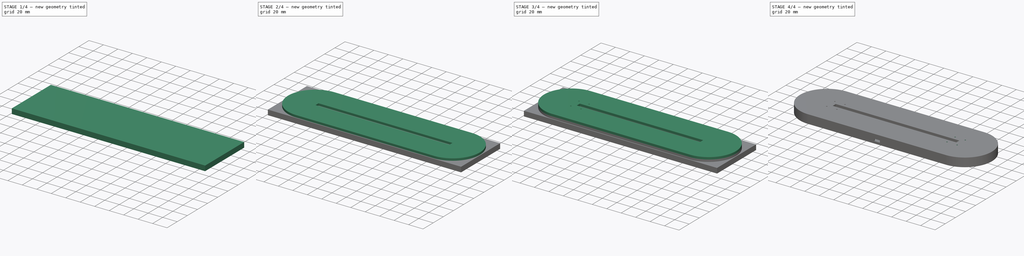
[diagram: build sequence overview — one tinted view per stage of 4, left to right]
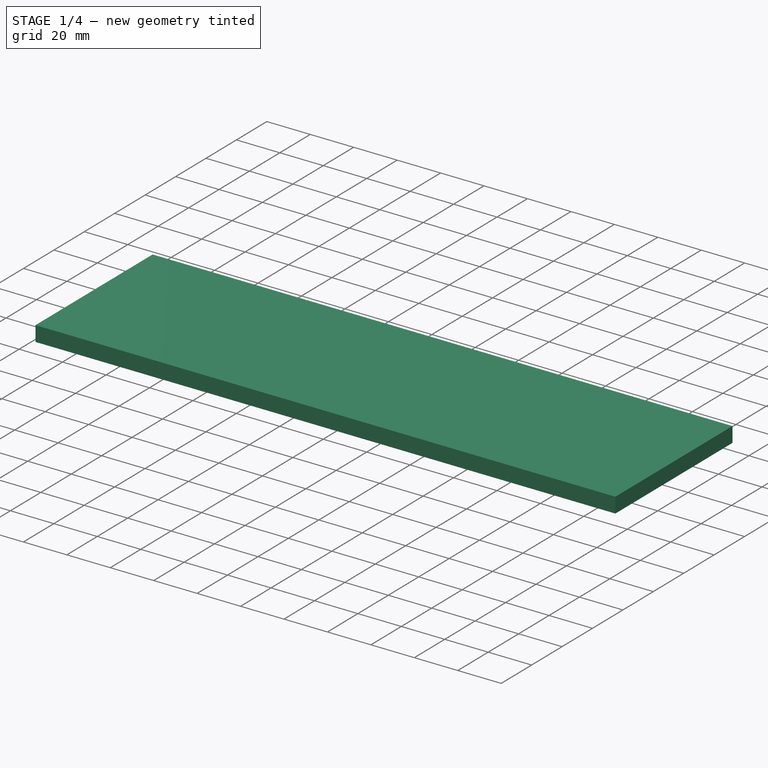
[diagram: stage 1 of 4 — iso view after this stage's code; geometry added in this stage tinted green]
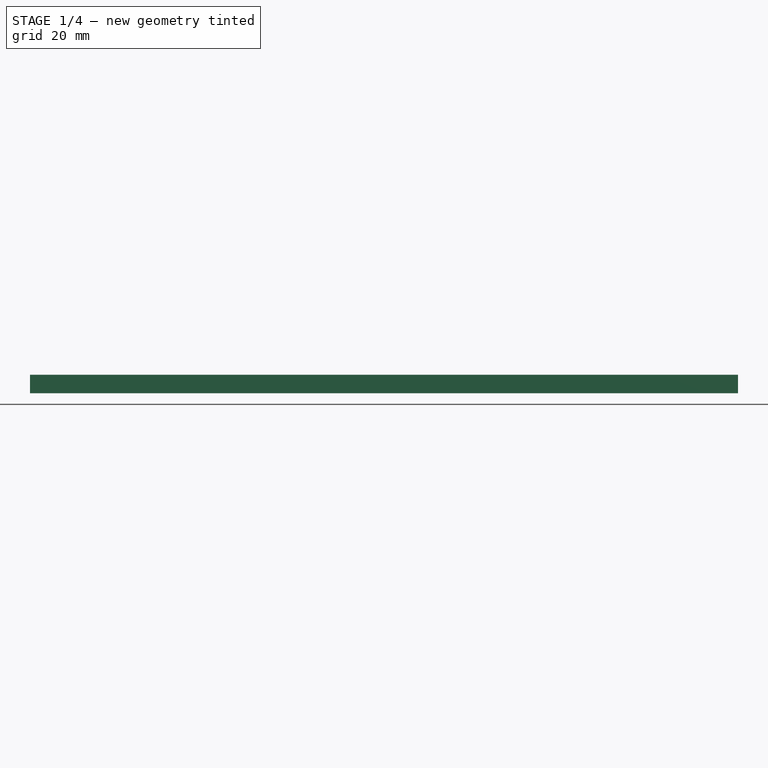
[diagram: stage 1 of 4 — front view after this stage's code; geometry added in this stage tinted green]
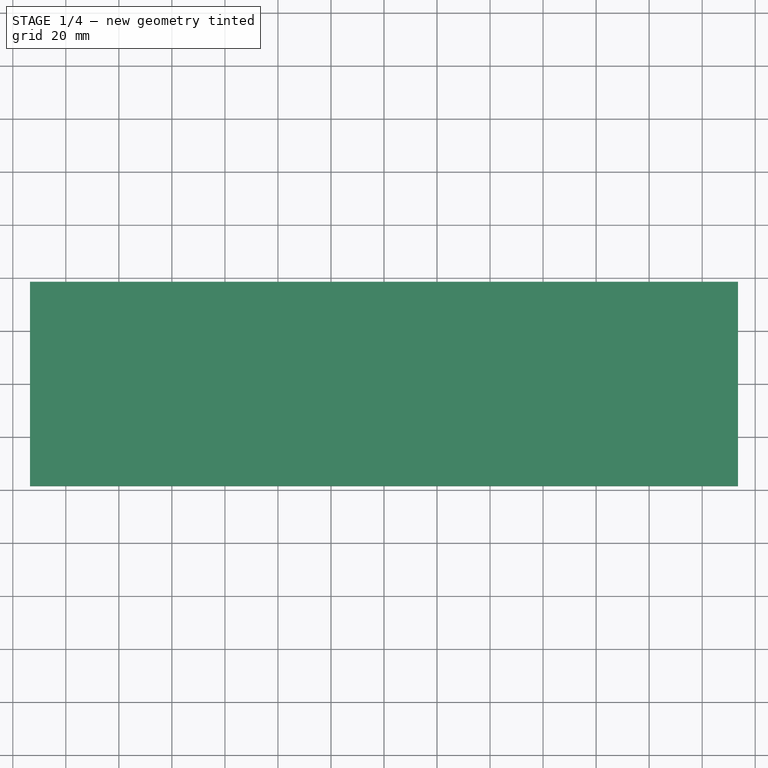
[diagram: stage 1 of 4 — top view after this stage's code; geometry added in this stage tinted green]
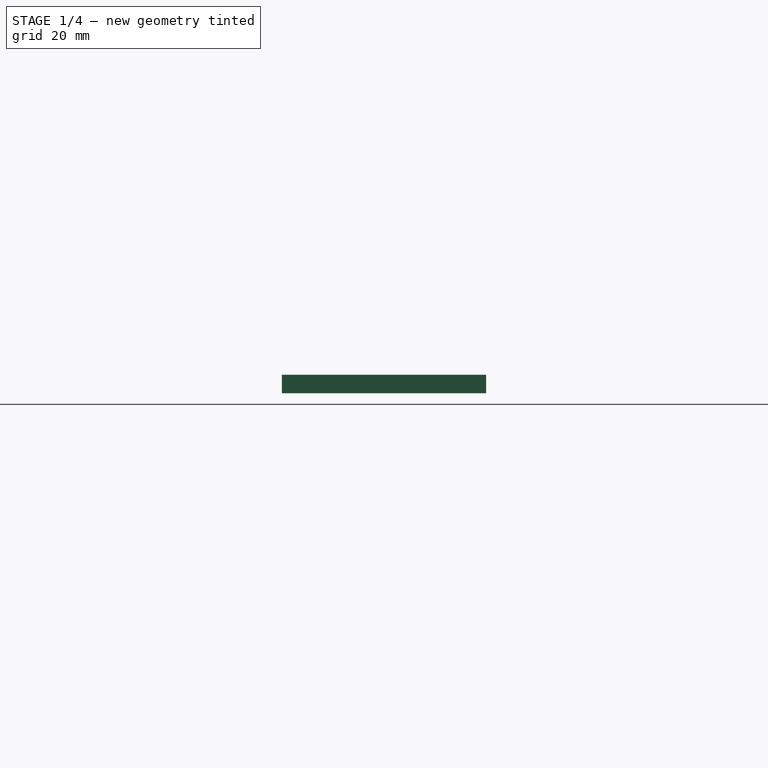
[diagram: stage 1 of 4 — right view after this stage's code; geometry added in this stage tinted green]
FCSTD DOCUMENT  (FreeCAD 0.17R13541 (Git))
Label: Acry-Base-Tiny-25-Right-Angle-notch-Slot-upper-Notch-Laser-Sect
License: All rights reserved
LicenseURL: http://en.wikipedia.org/wiki/All_rights_reserved
objects: Sketcher::SketchObject×7, App::MeasureDistance×5, PartDesign::Pocket×4, Part::Feature×4, PartDesign::Pad×3, PartDesign::Mirrored×1, PartDesign::Body×1, App::Part×1, Part::Box×1, Part::MultiCommon×1, Part::Cut×1, App::DocumentObjectGroup×1
note: 30 computed .brp shape members not serialized (recipe doc carries the construction recipe); baked Part::Feature solids carry a one-line shape summary decoded from their .brp

FEATURE [Sketcher::SketchObject] Sketch
  MapMode = 5
  Support = -> [XY_Plane001]
  sketch-geometry (5):
    g0: ArcOfCircle CenterX=-95 CenterY=0 CenterZ=0 NormalX=0 NormalY=0 NormalZ=1 AngleXU=0 Radius=37.5 StartAngle=1.5708 EndAngle=4.71239
    g1: ArcOfCircle CenterX=95 CenterY=0 CenterZ=0 NormalX=0 NormalY=0 NormalZ=1 AngleXU=0 Radius=37.5 StartAngle=4.71239 EndAngle=7.85398
    g2: LineSegment StartX=-95 StartY=-37.5 StartZ=0 EndX=95 EndY=-37.5 EndZ=0
    g3: LineSegment StartX=-95 StartY=37.5 StartZ=0 EndX=95 EndY=37.5 EndZ=0
    g4: GeomPoint X=0 Y=37.5 Z=0
  constraints (12):
    c: Tangent(g0,g3) = 1.5708
    c: Tangent(g0,g2) = -1.5708
    c: Tangent(g2,g1) = -1.5708
    c: Tangent(g3,g1) = 1.5708
    c: Horizontal(g2)
    c: Equal(g0,g1)
    c: Distance(g1,g1) = 75
    c: Distance(g0,g1) = 190
    c: PointOnObject(g4,g3)
    c: Symmetric(g1,g0,g4)
    c: PointOnObject(g4,g-2)
    c: PointOnObject(g0,g-1)
FEATURE [PartDesign::Pad] Pad
  Length = 6
  Length2 = 100
  Profile = -> Sketch
  Type = 0
FEATURE [Sketcher::SketchObject] Sketch001
  MapMode = 5
  Placement = pos=(0,0,6) rot=(0,0,1;0rad)
  Support = -> [Pad]
  sketch-geometry (5):
    g0: ArcOfCircle CenterX=-87.3 CenterY=0 CenterZ=0 NormalX=0 NormalY=0 NormalZ=1 AngleXU=0 Radius=6 StartAngle=1.5708 EndAngle=4.71239
    g1: ArcOfCircle CenterX=87.3 CenterY=0 CenterZ=0 NormalX=0 NormalY=0 NormalZ=1 AngleXU=0 Radius=6 StartAngle=4.71239 EndAngle=7.85398
    g2: LineSegment StartX=-87.3 StartY=-6 StartZ=0 EndX=87.3 EndY=-6 EndZ=0
    g3: LineSegment StartX=-87.3 StartY=6 StartZ=0 EndX=87.3 EndY=6 EndZ=0
    g4: GeomPoint X=0 Y=6 Z=0
  constraints (12):
    c: Tangent(g0,g3) = 1.5708
    c: Tangent(g0,g2) = -1.5708
    c: Tangent(g2,g1) = -1.5708
    c: Tangent(g3,g1) = 1.5708
    c: Horizontal(g2)
    c: Equal(g0,g1)
    c: Distance(g3) = 174.6
    c: Distance(g1,g1) = 12
    c: PointOnObject(g4,g3)
    c: Symmetric(g1,g0,g4)
    c: PointOnObject(g4,g-2)
    c: PointOnObject(g0,g-1)
FEATURE [PartDesign::Pocket] Pocket
  BaseFeature = -> Pad
  Length = 3
  Length2 = 100
  Profile = -> Sketch001
  Type = 0
FEATURE [PartDesign::Body] Body
  Group = -> [Sketch,Pad,Sketch001,Pocket,Sketch002,Pocket001,Sketch003,Pocket002,Sketch004,Pad001,Sketch005,Pad002,Sketch007,Pocket003,Mirrored]
  Origin = -> Origin001
  Tip = -> Mirrored
FEATURE [App::Part] Part
  Group = -> [Body]
  License = CC BY 3.0
  LicenseURL = http://creativecommons.org/licenses/by/3.0/
  Origin = -> Origin
FEATURE [App::MeasureDistance] Distance  label="Distance: 47.22 mm"
  Distance = 47.224
  P1 = (85.25,0.401779,12)
  P2 = (132.447,1.98463,12)
FEATURE [Part::Box] box_bottom_half_0
  AttacherType = Attacher::AttachEngine3D
  Height = 7
  Length = 266.988
  Placement = pos=(-133.494,-38.5,-1) rot=(0,0,1;0rad)
  Width = 77
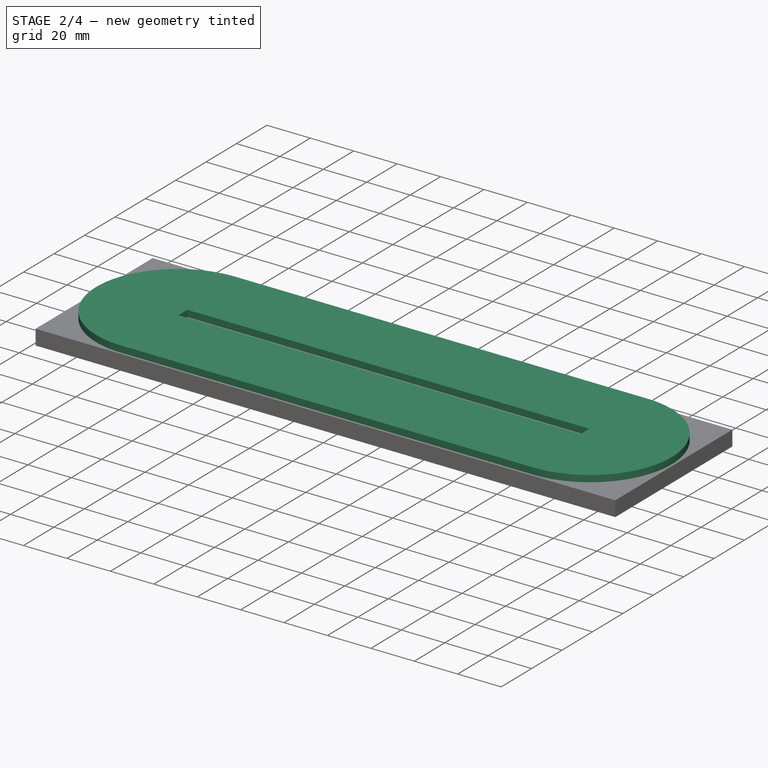
[diagram: stage 2 of 4 — iso view after this stage's code; geometry added in this stage tinted green]
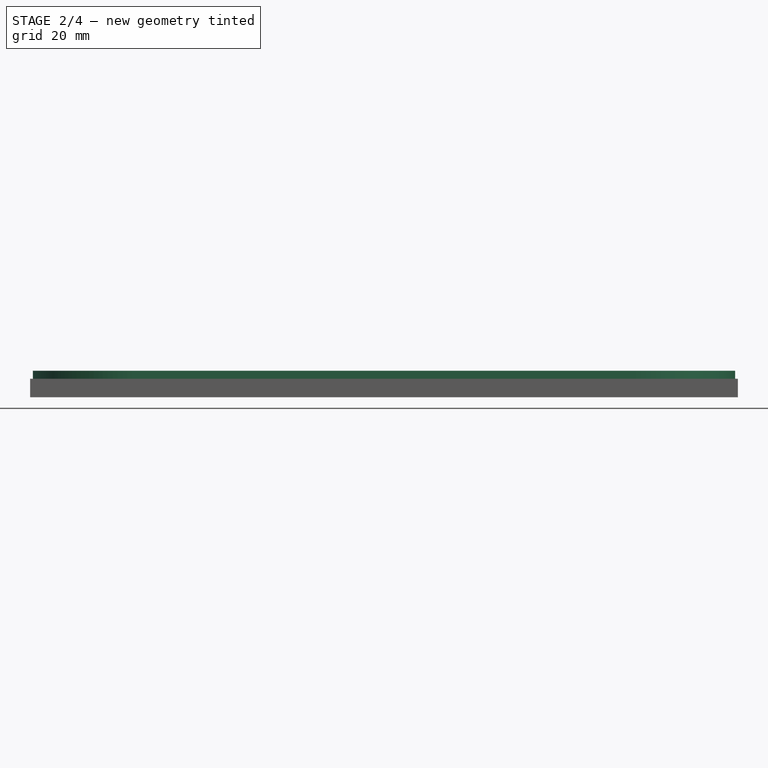
[diagram: stage 2 of 4 — front view after this stage's code; geometry added in this stage tinted green]
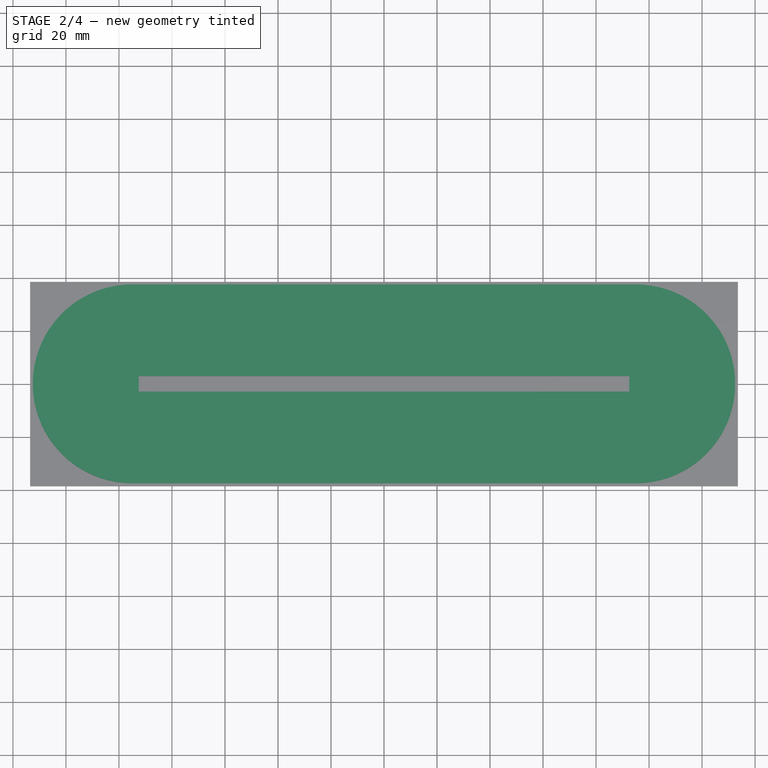
[diagram: stage 2 of 4 — top view after this stage's code; geometry added in this stage tinted green]
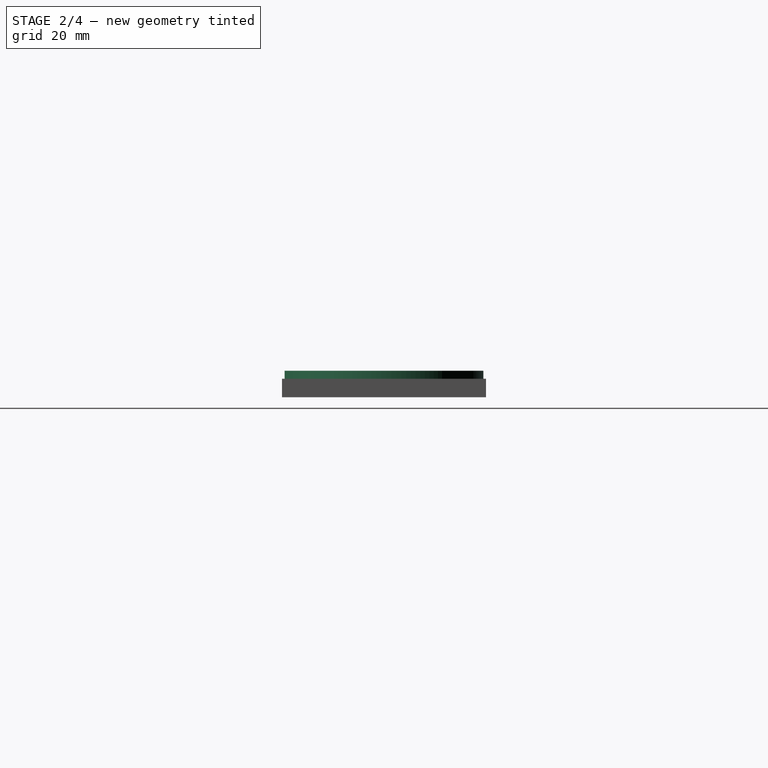
[diagram: stage 2 of 4 — right view after this stage's code; geometry added in this stage tinted green]
FEATURE [Sketcher::SketchObject] Sketch002
  ExternalGeometry = -> [Pocket]
  MapMode = 5
  Placement = pos=(0,0,6) rot=(0,0,1;0rad)
  Support = -> [Pocket]
  sketch-geometry (5):
    g0: LineSegment StartX=-9.2 StartY=-15 StartZ=0 EndX=9.2 EndY=-15 EndZ=0
    g1: LineSegment StartX=9.2 StartY=-15 StartZ=0 EndX=9.2 EndY=-35.85 EndZ=0
    g2: LineSegment StartX=9.2 StartY=-35.85 StartZ=0 EndX=-9.2 EndY=-35.85 EndZ=0
    g3: LineSegment StartX=-9.2 StartY=-35.85 StartZ=0 EndX=-9.2 EndY=-15 EndZ=0
    g4: GeomPoint X=0 Y=-15 Z=0
  constraints (14):
    c: Coincident(g0,g1)
    c: Coincident(g1,g2)
    c: Coincident(g2,g3)
    c: Coincident(g3,g0)
    c: Horizontal(g0)
    c: Horizontal(g2)
    c: Vertical(g1)
    c: Vertical(g3)
    c: Distance(g0) = 18.4
    c: Distance(g1) = 20.85
    c: PointOnObject(g4,g0)
    c: Symmetric(g0,g0,g4)
    c: PointOnObject(g4,g-2)
    c: Distance(g2,g-3) = 1.65
FEATURE [PartDesign::Pocket] Pocket001
  BaseFeature = -> Pocket
  Length = 3
  Length2 = 100
  Profile = -> Sketch002
  Type = 0
FEATURE [Sketcher::SketchObject] Sketch003
  ExternalGeometry = -> [Pocket001]
  MapMode = 5
  Placement = pos=(0,0,6) rot=(0,0,1;0rad)
  Support = -> [Pocket001]
  sketch-geometry (5):
    g0: LineSegment StartX=-4 StartY=-35.85 StartZ=0 EndX=4 EndY=-35.85 EndZ=0
    g1: LineSegment StartX=4 StartY=-35.85 StartZ=0 EndX=4 EndY=-37.5 EndZ=0
    g2: LineSegment StartX=4 StartY=-37.5 StartZ=0 EndX=-4 EndY=-37.5 EndZ=0
    g3: LineSegment StartX=-4 StartY=-37.5 StartZ=0 EndX=-4 EndY=-35.85 EndZ=0
    g4: GeomPoint X=0 Y=-35.85 Z=0
  constraints (13):
    c: Coincident(g2,g3)
    c: Coincident(g0,g3)
    c: Coincident(g1,g2)
    c: Coincident(g0,g1)
    c: Vertical(g1)
    c: Vertical(g3)
    c: Symmetric(g0,g0,g4)
    c: PointOnObject(g4,g-2)
    c: Horizontal(g0)
    c: Horizontal(g2)
    c: PointOnObject(g1,g-4)
    c: PointOnObject(g0,g-5)
    c: Distance(g2) = 8
FEATURE [PartDesign::Pocket] Pocket002
  BaseFeature = -> Pocket001
  Length = 3
  Length2 = 100
  Profile = -> Sketch003
  Type = 0
FEATURE [Sketcher::SketchObject] Sketch004
  ExternalGeometry = -> [Pocket002]
  MapMode = 5
  Placement = pos=(0,0,6) rot=(0,0,1;0rad)
  Support = -> [Pocket002]
  sketch-geometry (10):
    g0: ArcOfCircle CenterX=-95 CenterY=0 CenterZ=0 NormalX=0 NormalY=0 NormalZ=1 AngleXU=0 Radius=37.5 StartAngle=1.5708 EndAngle=4.71239
    g1: ArcOfCircle CenterX=95 CenterY=0 CenterZ=0 NormalX=0 NormalY=0 NormalZ=1 AngleXU=0 Radius=37.5 StartAngle=4.71239 EndAngle=7.85398
    g2: LineSegment StartX=-95 StartY=-37.5 StartZ=0 EndX=95 EndY=-37.5 EndZ=0
    g3: LineSegment StartX=-95 StartY=37.5 StartZ=0 EndX=95 EndY=37.5 EndZ=0
    g4: LineSegment StartX=-92.5387 StartY=2.925 StartZ=0 EndX=92.5387 EndY=2.925 EndZ=0
    g5: LineSegment StartX=92.5387 StartY=2.925 StartZ=0 EndX=92.5387 EndY=-2.925 EndZ=0
    g6: LineSegment StartX=92.5387 StartY=-2.925 StartZ=0 EndX=-92.5387 EndY=-2.925 EndZ=0
    g7: LineSegment StartX=-92.5387 StartY=-2.925 StartZ=0 EndX=-92.5387 EndY=2.925 EndZ=0
    g8: GeomPoint X=92.5387 Y=0 Z=0
    g9: GeomPoint X=0 Y=2.925 Z=0
  constraints (24):
    c: Tangent(g0,g3) = 1.5708
    c: Tangent(g0,g2) = -1.5708
    c: Tangent(g2,g1) = -1.5708
    c: Tangent(g3,g1) = 1.5708
    c: Horizontal(g2)
    c: Equal(g0,g1)
    c: Coincident(g0,g-3)
    c: Coincident(g1,g-4)
    c: Coincident(g4,g5)
    c: Coincident(g5,g6)
    c: Coincident(g6,g7)
    c: Coincident(g7,g4)
    c: Horizontal(g4)
    c: Horizontal(g6)
    c: Vertical(g5)
    c: Vertical(g7)
    c: Distance(g5) = 5.85
    c: PointOnObject(g8,g5)
    c: PointOnObject(g9,g4)
    c: Symmetric(g4,g5,g8)
    c: Symmetric(g4,g4,g9)
    c: PointOnObject(g8,g-1)
    c: PointOnObject(g9,g-2)
    c: PointOnObject(g4,g-5)
FEATURE [PartDesign::Pad] Pad001
  BaseFeature = -> Pocket002
  Length = 3
  Length2 = 100
  Profile = -> Sketch004
  Type = 0
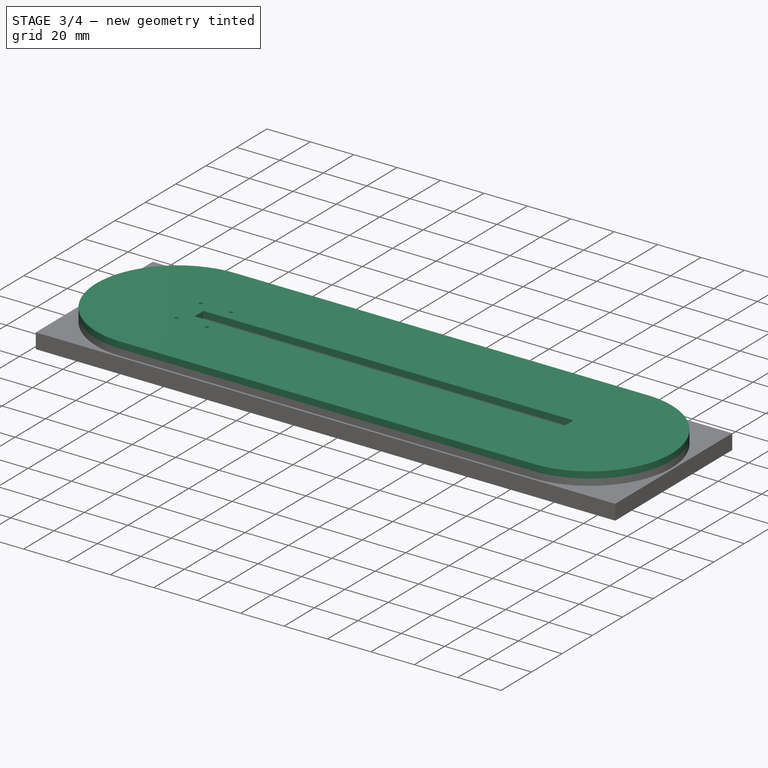
[diagram: stage 3 of 4 — iso view after this stage's code; geometry added in this stage tinted green]
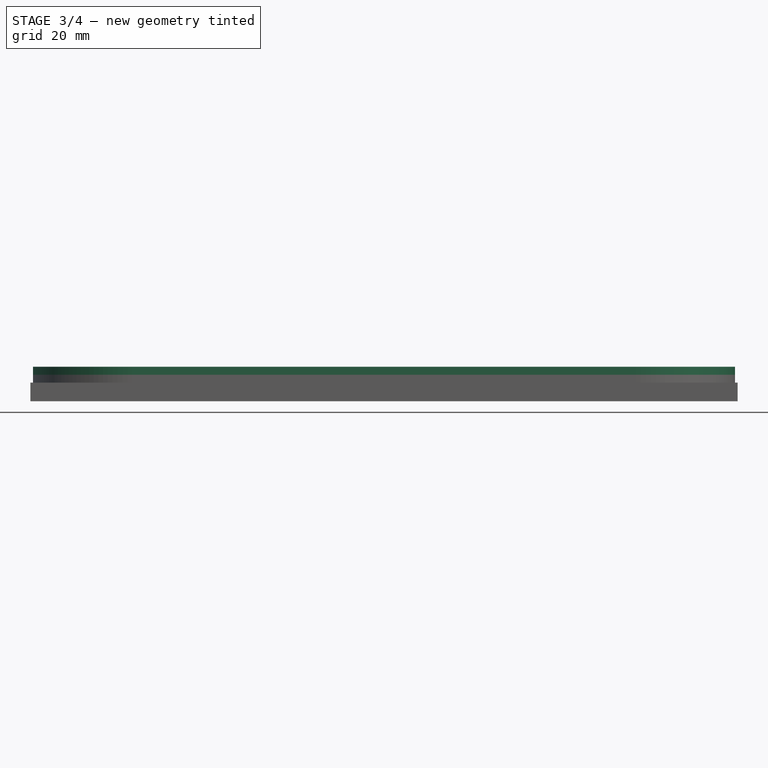
[diagram: stage 3 of 4 — front view after this stage's code; geometry added in this stage tinted green]
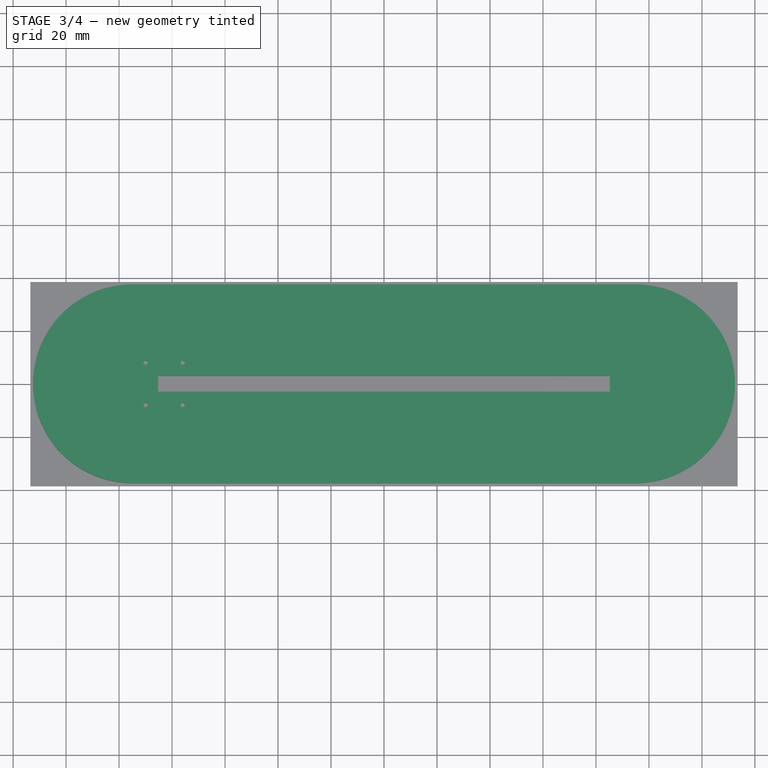
[diagram: stage 3 of 4 — top view after this stage's code; geometry added in this stage tinted green]
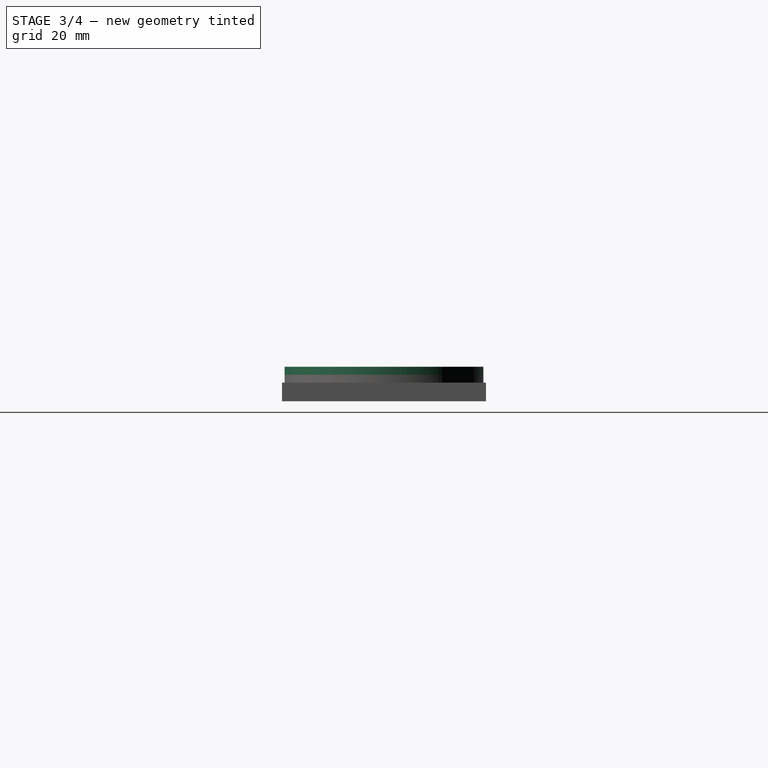
[diagram: stage 3 of 4 — right view after this stage's code; geometry added in this stage tinted green]
FEATURE [Sketcher::SketchObject] Sketch005
  ExternalGeometry = -> [Pad001]
  MapMode = 5
  Placement = pos=(0,0,9) rot=(0,0,1;0rad)
  Support = -> [Pad001]
  sketch-geometry (10):
    g0: LineSegment StartX=-85.25 StartY=2.975 StartZ=0 EndX=85.25 EndY=2.975 EndZ=0
    g1: LineSegment StartX=85.25 StartY=2.975 StartZ=0 EndX=85.25 EndY=-2.975 EndZ=0
    g2: LineSegment StartX=85.25 StartY=-2.975 StartZ=0 EndX=-85.25 EndY=-2.975 EndZ=0
    g3: LineSegment StartX=-85.25 StartY=-2.975 StartZ=0 EndX=-85.25 EndY=2.975 EndZ=0
    g4: GeomPoint X=0 Y=2.975 Z=0
    g5: GeomPoint X=-85.25 Y=0 Z=0
    g6: ArcOfCircle CenterX=-95 CenterY=0 CenterZ=0 NormalX=0 NormalY=0 NormalZ=1 AngleXU=0 Radius=37.5 StartAngle=1.5708 EndAngle=4.71239
    g7: ArcOfCircle CenterX=95 CenterY=0 CenterZ=0 NormalX=0 NormalY=0 NormalZ=1 AngleXU=0 Radius=37.5 StartAngle=4.71239 EndAngle=7.85398
    g8: LineSegment StartX=-95 StartY=-37.5 StartZ=0 EndX=95 EndY=-37.5 EndZ=0
    g9: LineSegment StartX=-95 StartY=37.5 StartZ=0 EndX=95 EndY=37.5 EndZ=0
  constraints (24):
    c: Coincident(g0,g1)
    c: Coincident(g1,g2)
    c: Coincident(g2,g3)
    c: Coincident(g3,g0)
    c: Horizontal(g0)
    c: Horizontal(g2)
    c: Vertical(g1)
    c: Vertical(g3)
    c: Distance(g1) = 5.95
    c: PointOnObject(g4,g0)
    c: PointOnObject(g5,g3)
    c: Symmetric(g0,g0,g4)
    c: Symmetric(g0,g2,g5)
    c: PointOnObject(g4,g-2)
    c: PointOnObject(g5,g-1)
    c: Distance(g0) = 170.5
    c: Tangent(g6,g9) = 1.5708
    c: Tangent(g6,g8) = -1.5708
    c: Tangent(g8,g7) = -1.5708
    c: Tangent(g9,g7) = 1.5708
    c: Horizontal(g8)
    c: Equal(g6,g7)
    c: Coincident(g6,g-3)
    c: Coincident(g7,g-4)
FEATURE [PartDesign::Pad] Pad002
  BaseFeature = -> Pad001
  Length = 3
  Length2 = 100
  Profile = -> Sketch005
  Type = 0
FEATURE [Sketcher::SketchObject] Sketch007
  MapMode = 5
  Placement = pos=(0,0,12) rot=(0,0,1;0rad)
  Support = -> [Pad002]
  sketch-geometry (5):
    g0: Circle CenterX=-90 CenterY=-8 CenterZ=0 NormalX=0 NormalY=0 NormalZ=1 AngleXU=0 Radius=0.8
    g1: GeomPoint X=-90.5597 Y=-7.42837 Z=0
    g2: Circle CenterX=-90 CenterY=8 CenterZ=0 NormalX=0 NormalY=0 NormalZ=1 AngleXU=0 Radius=0.8
    g3: Circle CenterX=-76 CenterY=8 CenterZ=0 NormalX=0 NormalY=0 NormalZ=1 AngleXU=0 Radius=0.8
    g4: Circle CenterX=-76 CenterY=-8 CenterZ=0 NormalX=0 NormalY=0 NormalZ=1 AngleXU=0 Radius=0.8
  constraints (13):
    c: PointOnObject(g1,g0)
    c: Distance(g0,g1) = 0.8
    c: Equal(g0,g3)
    c: Equal(g0,g4)
    c: Equal(g0,g2)
    c: Distance(g0,g-2) = 90
    c: Distance(g4,g-2) = 76
    c: Distance(g0,g-1) = 8
    c: Distance(g4,g-1) = 8
    c: Distance(g3,g-1) = 8
    c: Distance(g2,g-1) = 8
    c: Distance(g2,g-2) = 90
    c: Distance(g3,g-2) = 76
FEATURE [PartDesign::Pocket] Pocket003
  BaseFeature = -> Pad002
  Length = 5
  Length2 = 100
  Profile = -> Sketch007
  Type = 1
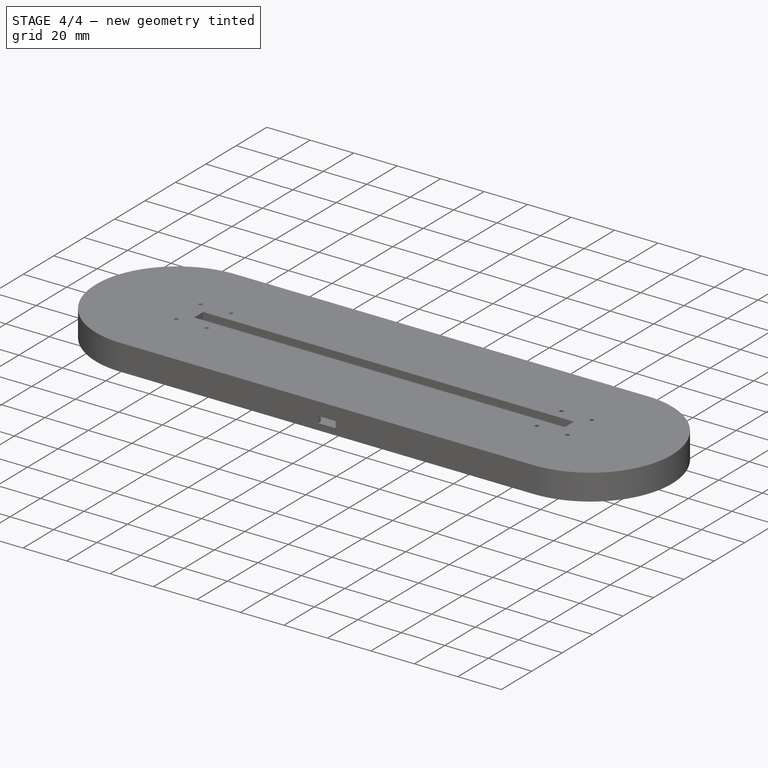
[diagram: stage 4 of 4 — iso view after this stage's code; geometry added in this stage tinted green]
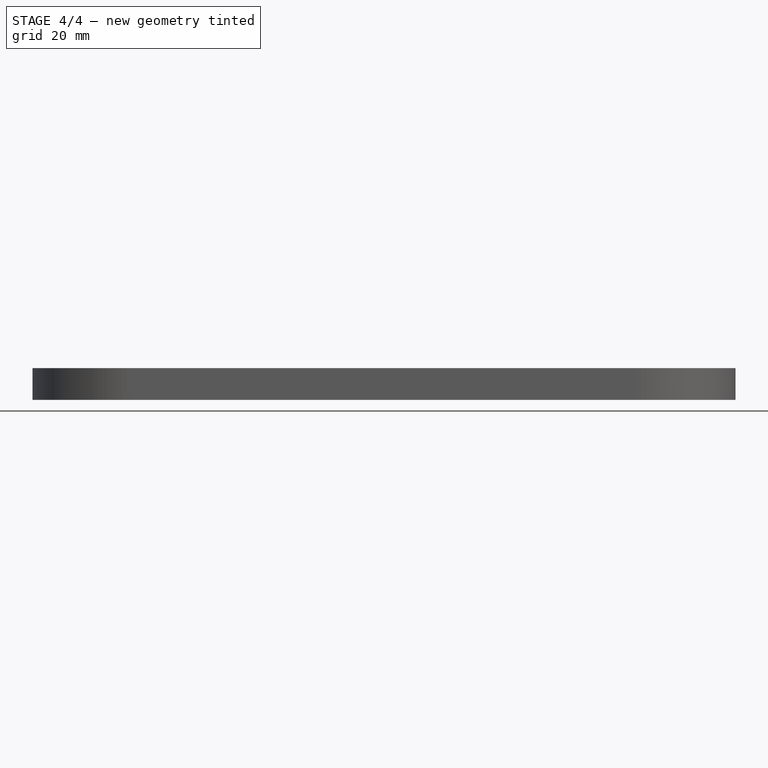
[diagram: stage 4 of 4 — front view after this stage's code; geometry added in this stage tinted green]
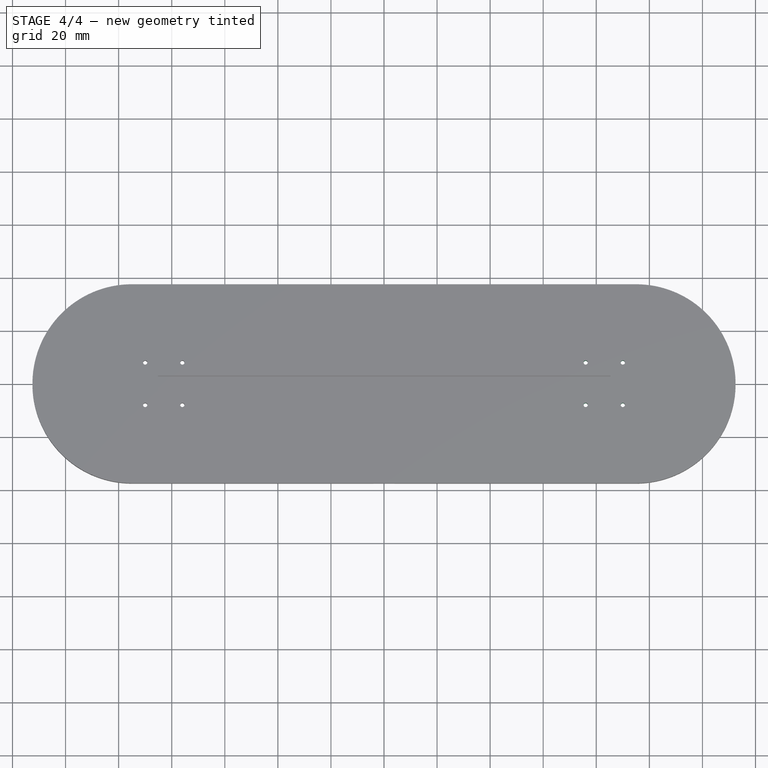
[diagram: stage 4 of 4 — top view after this stage's code; geometry added in this stage tinted green]
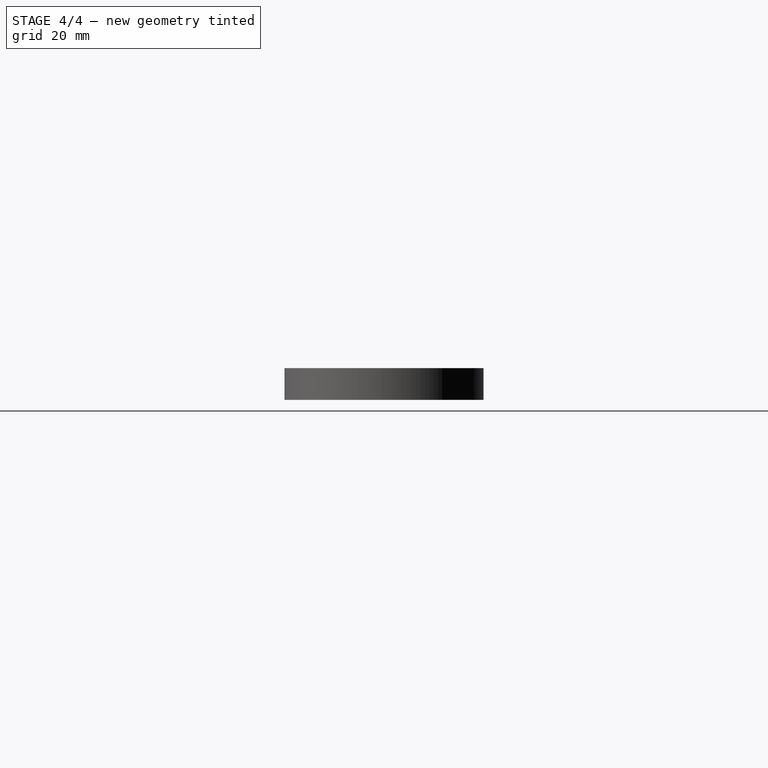
[diagram: stage 4 of 4 — right view after this stage's code; geometry added in this stage tinted green]
FEATURE [PartDesign::Mirrored] Mirrored
  BaseFeature = -> Pocket003
  MirrorPlane = -> Sketch007 [V_Axis]
  Originals = -> [Pocket003]
FEATURE [Part::MultiCommon] bottom_half_0
  Shapes = -> [Body,box_bottom_half_0]
FEATURE [Part::Cut] top_half_0
  Base = -> Body
  Tool = -> box_bottom_half_0
FEATURE [Part::Feature] MyLayer
  Placement = pos=(0,0,-1.5) rot=(0,0,1;0rad)
  shape: bbox 265 x 75 x 3e-07 mm, 0 faces, 0 solids (baked)
FEATURE [Part::Feature] MyLayer001
  Placement = pos=(269.988,0,-4.5) rot=(0,0,1;0rad)
  shape: bbox 265 x 75 x 3e-07 mm, 0 faces, 0 solids (baked)
FEATURE [Part::Feature] MyLayer002
  Placement = pos=(0,80,-7.5) rot=(0,0,1;0rad)
  shape: bbox 265 x 75 x 3e-07 mm, 0 faces, 0 solids (baked)
FEATURE [Part::Feature] MyLayer003
  Placement = pos=(269.988,80,-10.5) rot=(0,0,1;0rad)
  shape: bbox 265 x 75 x 3e-07 mm, 0 faces, 0 solids (baked)
FEATURE [App::DocumentObjectGroup] Body_Slices
  Group = -> [MyLayer,MyLayer001,MyLayer002,MyLayer003]
FEATURE [App::MeasureDistance] Distance001  label="Distance: 170.51 mm"
  Distance = 170.507
  P1 = (355.238,81.3766,0)
  P2 = (184.738,82.975,0)
FEATURE [App::MeasureDistance] Distance002  label="Distance: 5.95 mm"
  Distance = 5.95
  P1 = (184.738,77.025,0)
  P2 = (184.738,82.975,0)
FEATURE [App::MeasureDistance] Distance003  label="Distance: 5.85 mm"
  Distance = 5.85001
  P1 = (92.5387,82.925,0)
  P2 = (92.5387,77.075,0)
FEATURE [App::MeasureDistance] Distance004  label="Distance: 185.08 mm"
  Distance = 185.077
  P1 = (-92.5387,77.075,0)
  P2 = (92.5387,77.075,0)
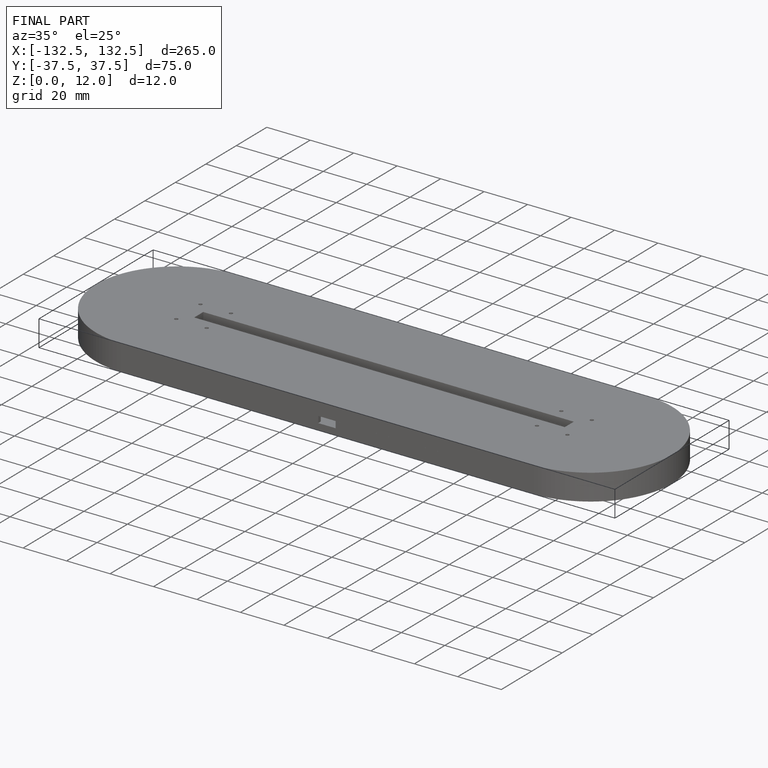
[diagram: finished part — iso view with bounding-box wireframe]
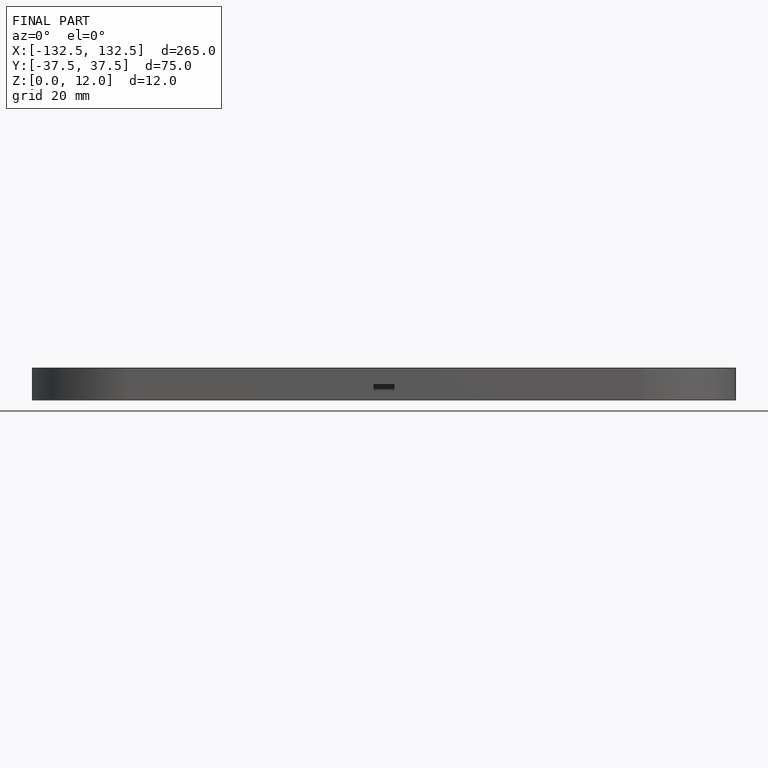
[diagram: finished part — front view with bounding-box wireframe]
